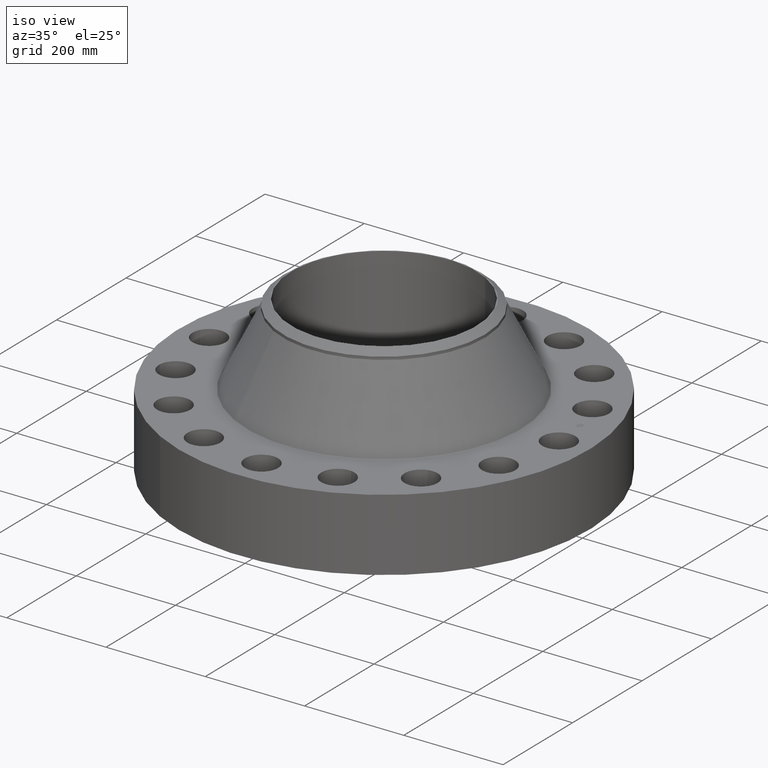
[diagram: clean part render]
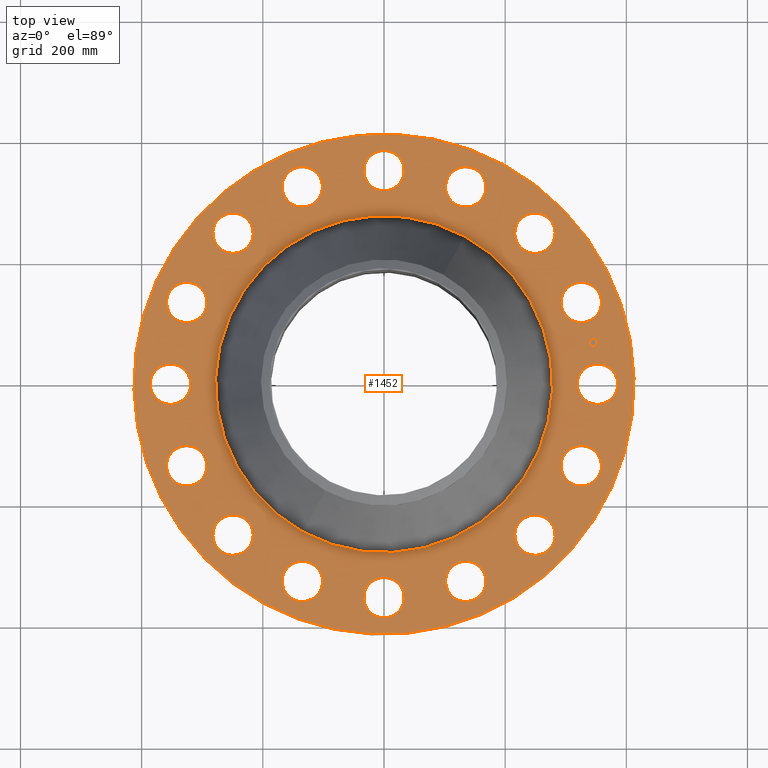
[diagram: tour spotlight — one face highlighted and labeled with its STEP entity id]
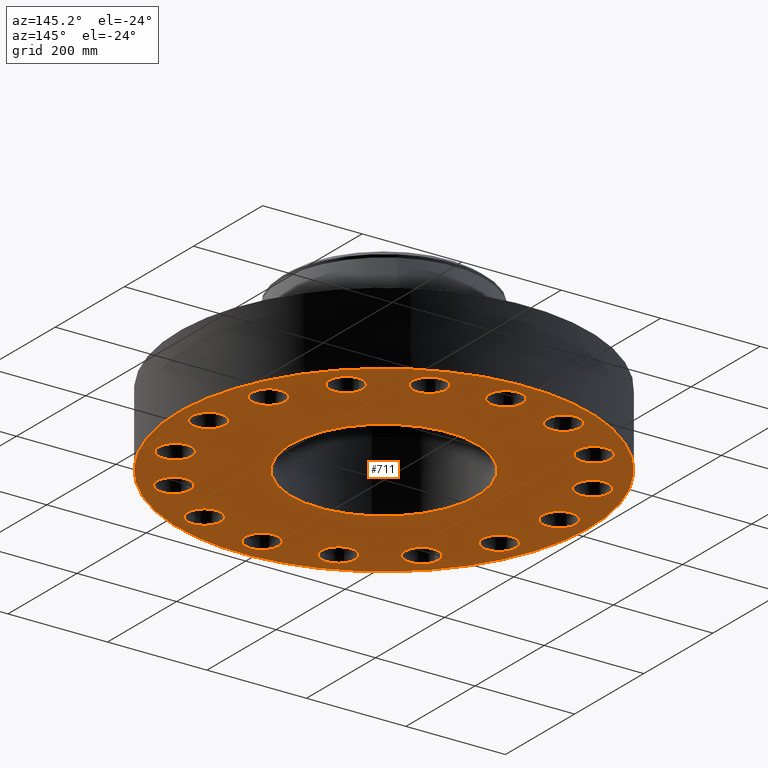
[diagram: tour spotlight — one face highlighted and labeled with its STEP entity id]
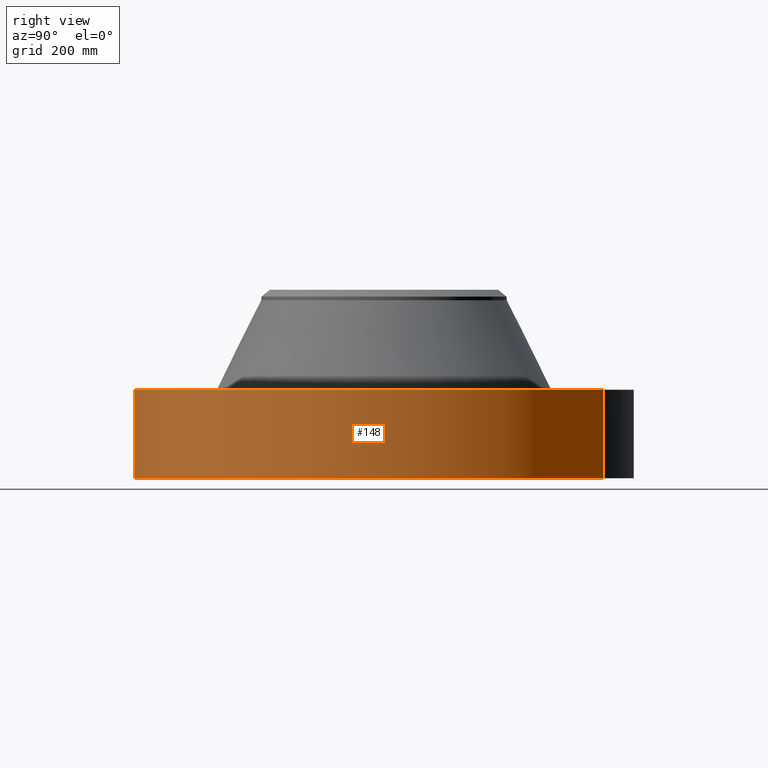
[diagram: tour spotlight — one face highlighted and labeled with its STEP entity id]
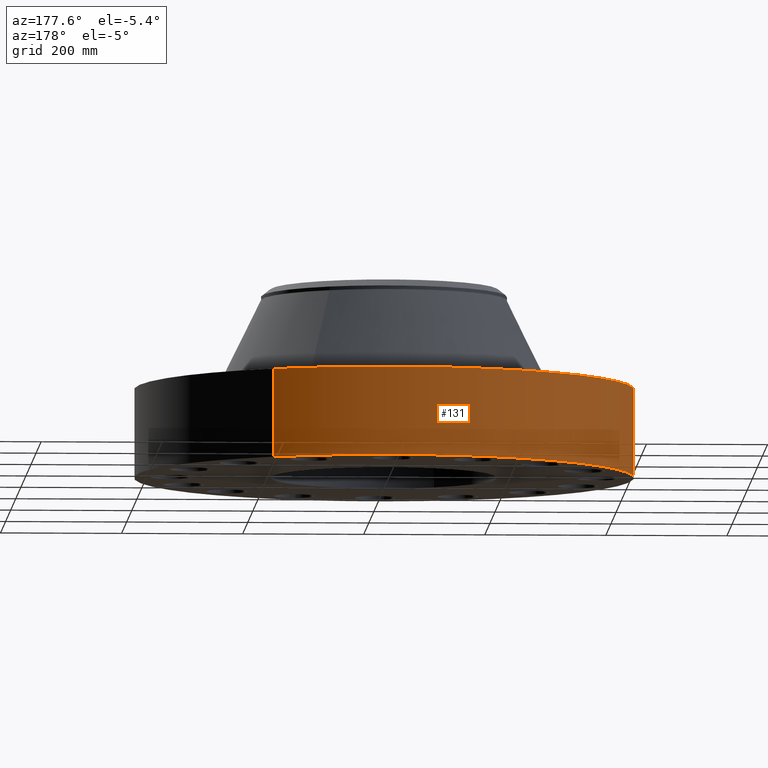
[diagram: tour spotlight — one face highlighted and labeled with its STEP entity id]
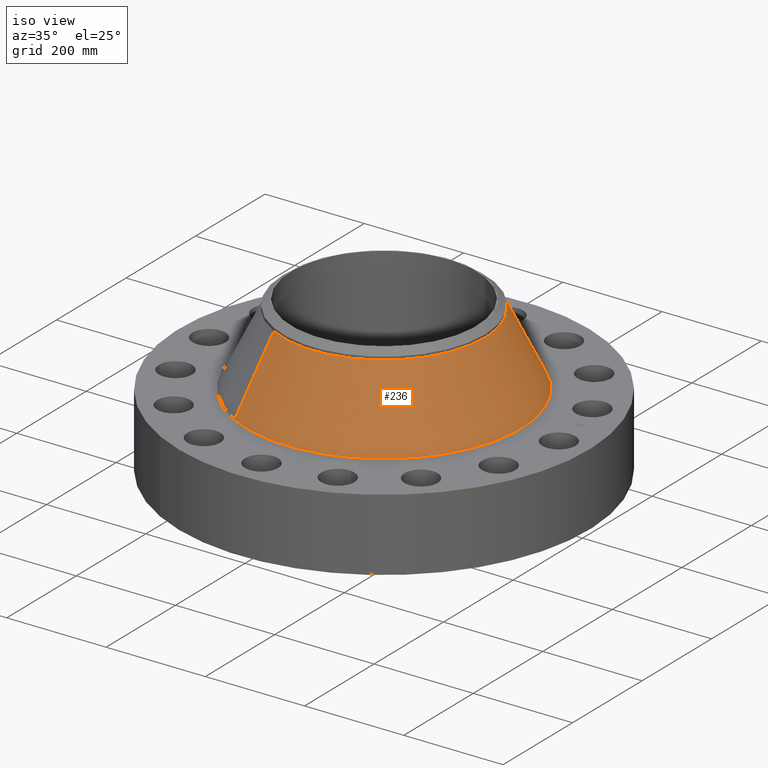
[diagram: tour spotlight — one face highlighted and labeled with its STEP entity id]
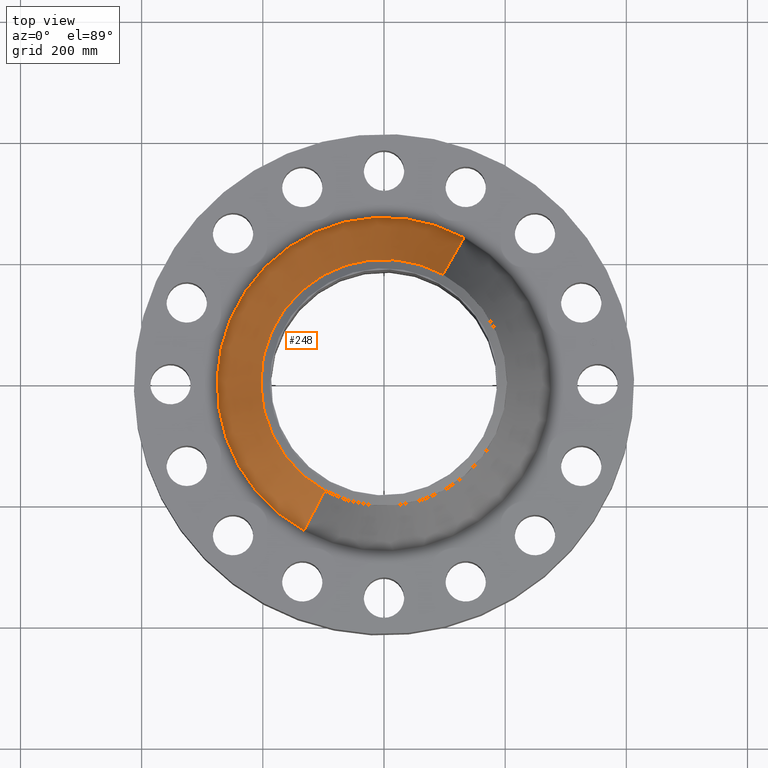
[diagram: tour spotlight — one face highlighted and labeled with its STEP entity id]
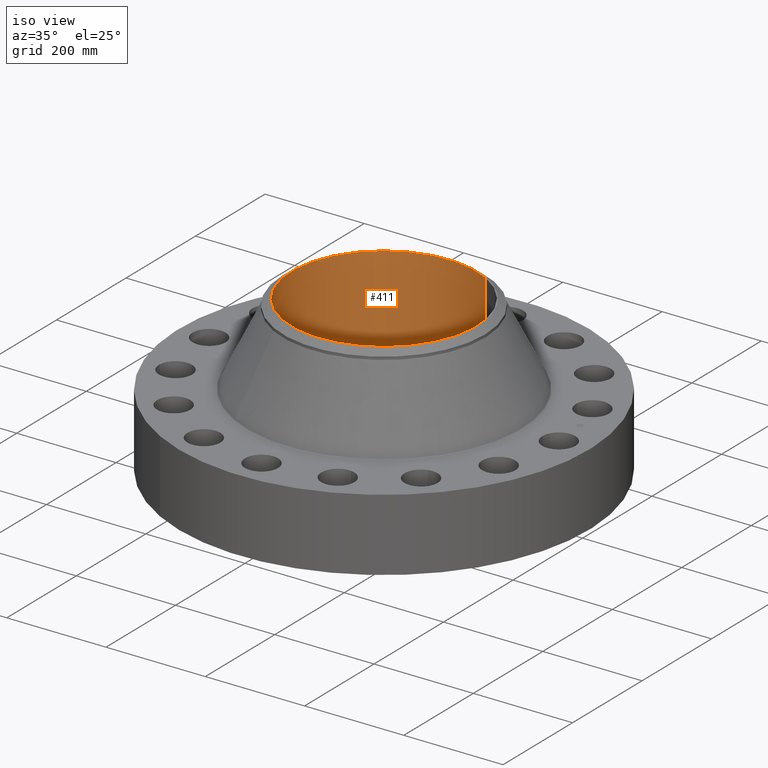
[diagram: tour spotlight — one face highlighted and labeled with its STEP entity id]
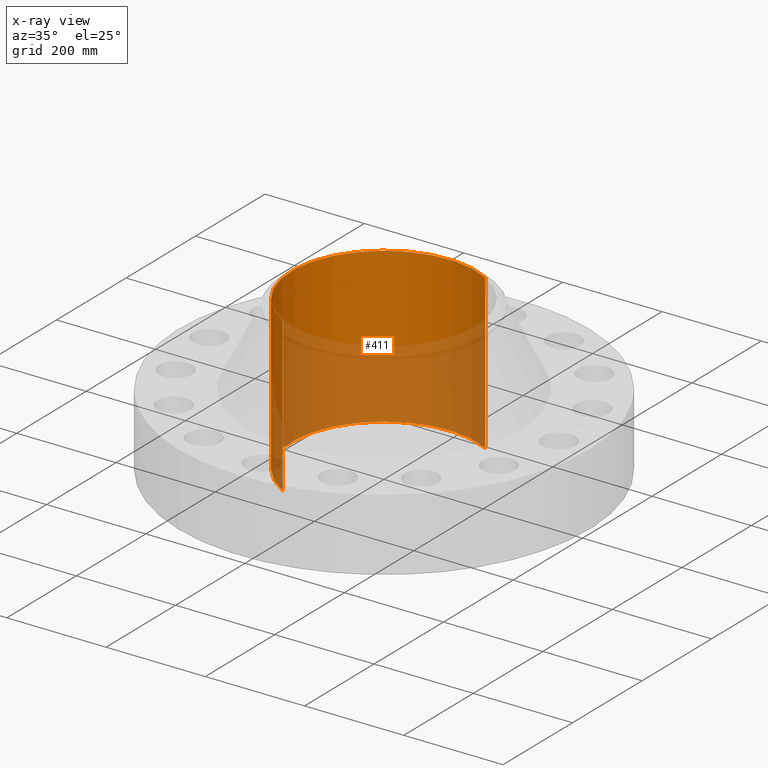
[diagram: x-ray of the same camera — body ghosted, this tour face saturated]
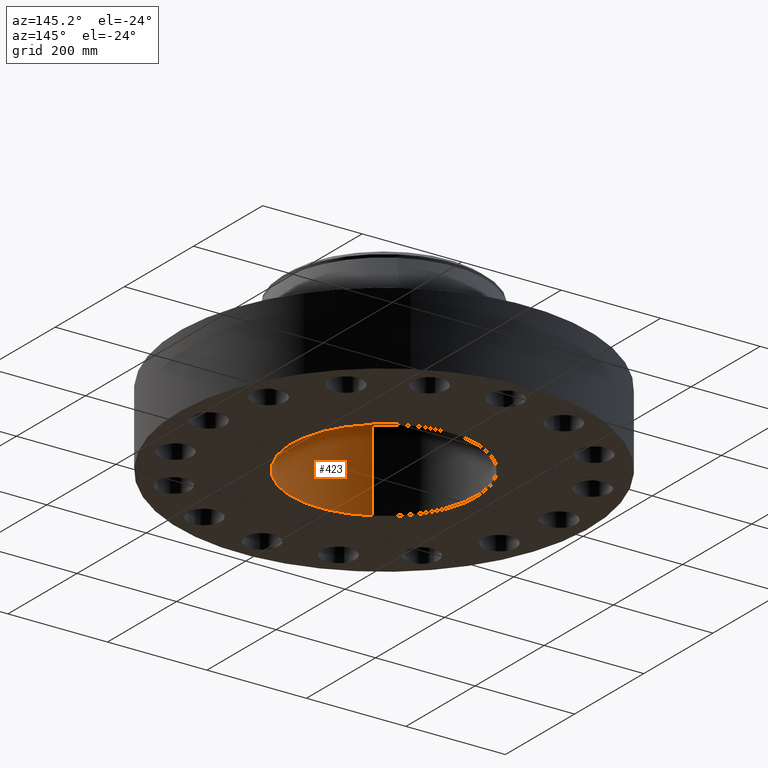
[diagram: tour spotlight — one face highlighted and labeled with its STEP entity id]
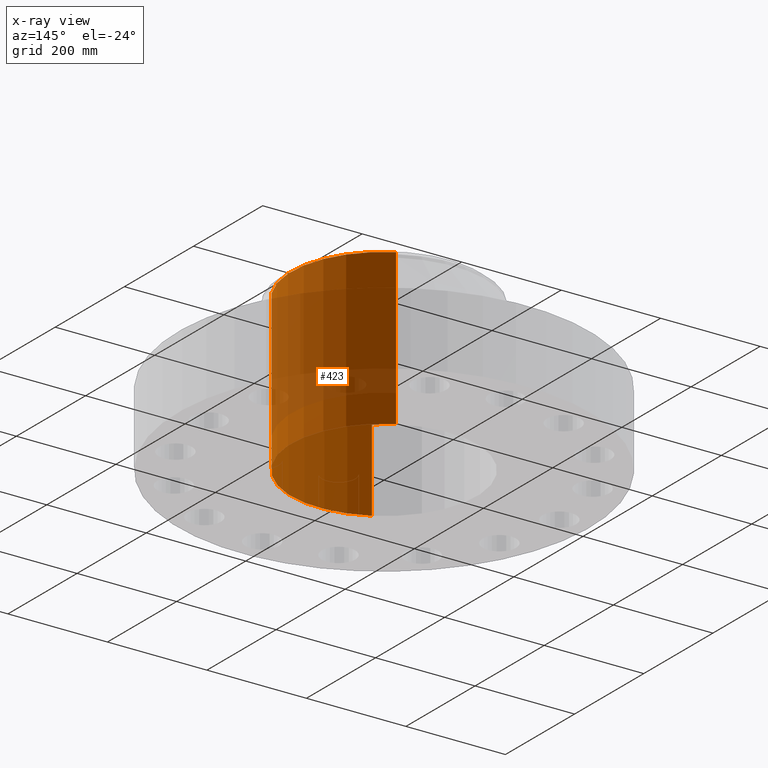
[diagram: x-ray of the same camera — body ghosted, this tour face saturated]
A machine part: a face-by-face anatomy tour. The part has 432 B-rep faces; the first image is the clean iso view, then the 8 largest visible faces are spotlighted one at a time (largest first), each with its STEP entity span.

Face 1 — top view, entity #1452. In plain terms, the highlighted planar face has unit normal (0, 0, -1).
Definition (entity closure, byte-faithful):
#65=AXIS2_PLACEMENT_3D('Circle Axis2P3D',#63,#64,$) ;
#82=AXIS2_PLACEMENT_3D('Circle Axis2P3D',#80,#81,$) ;
#115=AXIS2_PLACEMENT_3D('Circle Axis2P3D',#113,#114,$) ;
#139=AXIS2_PLACEMENT_3D('Circle Axis2P3D',#137,#138,$) ;
#156=AXIS2_PLACEMENT_3D('Circle Axis2P3D',#154,#155,$) ;
#191=AXIS2_PLACEMENT_3D('Circle Axis2P3D',#189,#190,$) ;
#733=AXIS2_PLACEMENT_3D('Circle Axis2P3D',#731,#732,$) ;
#745=AXIS2_PLACEMENT_3D('Circle Axis2P3D',#743,#744,$) ;
#776=AXIS2_PLACEMENT_3D('Circle Axis2P3D',#774,#775,$) ;
#788=AXIS2_PLACEMENT_3D('Circle Axis2P3D',#786,#787,$) ;
#819=AXIS2_PLACEMENT_3D('Circle Axis2P3D',#817,#818,$) ;
#831=AXIS2_PLACEMENT_3D('Circle Axis2P3D',#829,#830,$) ;
#862=AXIS2_PLACEMENT_3D('Circle Axis2P3D',#860,#861,$) ;
#874=AXIS2_PLACEMENT_3D('Circle Axis2P3D',#872,#873,$) ;
#905=AXIS2_PLACEMENT_3D('Circle Axis2P3D',#903,#904,$) ;
#917=AXIS2_PLACEMENT_3D('Circle Axis2P3D',#915,#916,$) ;
#948=AXIS2_PLACEMENT_3D('Circle Axis2P3D',#946,#947,$) ;
#960=AXIS2_PLACEMENT_3D('Circle Axis2P3D',#958,#959,$) ;
#991=AXIS2_PLACEMENT_3D('Circle Axis2P3D',#989,#990,$) ;
#1003=AXIS2_PLACEMENT_3D('Circle Axis2P3D',#1001,#1002,$) ;
#1034=AXIS2_PLACEMENT_3D('Circle Axis2P3D',#1032,#1033,$) ;
#1046=AXIS2_PLACEMENT_3D('Circle Axis2P3D',#1044,#1045,$) ;
#1077=AXIS2_PLACEMENT_3D('Circle Axis2P3D',#1075,#1076,$) ;
#1089=AXIS2_PLACEMENT_3D('Circle Axis2P3D',#1087,#1088,$) ;
#1120=AXIS2_PLACEMENT_3D('Circle Axis2P3D',#1118,#1119,$) ;
#1132=AXIS2_PLACEMENT_3D('Circle Axis2P3D',#1130,#1131,$) ;
#1163=AXIS2_PLACEMENT_3D('Circle Axis2P3D',#1161,#1162,$) ;
#1175=AXIS2_PLACEMENT_3D('Circle Axis2P3D',#1173,#1174,$) ;
#1206=AXIS2_PLACEMENT_3D('Circle Axis2P3D',#1204,#1205,$) ;
#1218=AXIS2_PLACEMENT_3D('Circle Axis2P3D',#1216,#1217,$) ;
#1249=AXIS2_PLACEMENT_3D('Circle Axis2P3D',#1247,#1248,$) ;
#1261=AXIS2_PLACEMENT_3D('Circle Axis2P3D',#1259,#1260,$) ;
#1292=AXIS2_PLACEMENT_3D('Circle Axis2P3D',#1290,#1291,$) ;
#1304=AXIS2_PLACEMENT_3D('Circle Axis2P3D',#1302,#1303,$) ;
#1335=AXIS2_PLACEMENT_3D('Circle Axis2P3D',#1333,#1334,$) ;
#1347=AXIS2_PLACEMENT_3D('Circle Axis2P3D',#1345,#1346,$) ;
#1360=AXIS2_PLACEMENT_3D('Plane Axis2P3D',#1357,#1358,#1359) ;
#1436=AXIS2_PLACEMENT_3D('Circle Axis2P3D',#1434,#1435,$) ;
#1445=AXIS2_PLACEMENT_3D('Circle Axis2P3D',#1443,#1444,$) ;
#46=CARTESIAN_POINT('Vertex',(12.7209789312,0.630444583267,5.75000000002)) ;
#60=CARTESIAN_POINT('Vertex',(15.0290210689,-0.630444583267,5.75000000002)) ;
#63=CARTESIAN_POINT('Axis2P3D Location',(13.8750000001,0.,5.75000000002)) ;
#80=CARTESIAN_POINT('Axis2P3D Location',(13.8750000001,0.,5.75000000002)) ;
#110=CARTESIAN_POINT('Vertex',(-7.79066500235,-14.2607166308,5.75000000002)) ;
#113=CARTESIAN_POINT('Axis2P3D Location',(0.,0.,5.75000000002)) ;
#117=CARTESIAN_POINT('Vertex',(7.79066500235,14.2607166308,5.75000000002)) ;
#137=CARTESIAN_POINT('Axis2P3D Location',(0.,0.,5.75000000002)) ;
#154=CARTESIAN_POINT('Axis2P3D Location',(0.,0.,5.75000000002)) ;
#158=CARTESIAN_POINT('Vertex',(5.24950314778,9.60915105711,5.75000000002)) ;
#160=CARTESIAN_POINT('Vertex',(-5.24950314778,-9.60915105711,5.75000000002)) ;
#189=CARTESIAN_POINT('Axis2P3D Location',(0.,0.,5.75000000002)) ;
#721=CARTESIAN_POINT('Vertex',(-11.9939127651,4.28565303356,5.75000000002)) ;
#728=CARTESIAN_POINT('Vertex',(-13.6437442622,6.33381221461,5.75000000002)) ;
#731=CARTESIAN_POINT('Axis2P3D Location',(-12.8188285136,5.30973262409,5.75000000002)) ;
#743=CARTESIAN_POINT('Axis2P3D Location',(-12.8188285136,5.30973262409,5.75000000002)) ;
#764=CARTESIAN_POINT('Vertex',(9.44088210555,-8.54929882557,5.75000000002)) ;
#771=CARTESIAN_POINT('Vertex',(10.1813310725,-11.0729143524,5.75000000002)) ;
#774=CARTESIAN_POINT('Axis2P3D Location',(9.811106589,-9.811106589,5.75000000002)) ;
#786=CARTESIAN_POINT('Axis2P3D Location',(9.811106589,-9.811106589,5.75000000002)) ;
#807=CARTESIAN_POINT('Vertex',(-9.44088210555,8.54929882557,5.75000000002)) ;
#814=CARTESIAN_POINT('Vertex',(-10.1813310725,11.0729143524,5.75000000002)) ;
#817=CARTESIAN_POINT('Axis2P3D Location',(-9.811106589,9.811106589,5.75000000002)) ;
#829=CARTESIAN_POINT('Axis2P3D Location',(-9.811106589,9.811106589,5.75000000002)) ;
#850=CARTESIAN_POINT('Vertex',(5.45056272729,-11.511391371,5.75000000002)) ;
#857=CARTESIAN_POINT('Vertex',(5.16890252089,-14.1262656563,5.75000000002)) ;
#860=CARTESIAN_POINT('Axis2P3D Location',(5.30973262409,-12.8188285136,5.75000000002)) ;
#872=CARTESIAN_POINT('Axis2P3D Location',(5.30973262409,-12.8188285136,5.75000000002)) ;
#893=CARTESIAN_POINT('Vertex',(-5.45056272729,11.511391371,5.75000000002)) ;
#900=CARTESIAN_POINT('Vertex',(-5.16890252089,14.1262656563,5.75000000002)) ;
#903=CARTESIAN_POINT('Axis2P3D Location',(-5.30973262409,12.8188285136,5.75000000002)) ;
#915=CARTESIAN_POINT('Axis2P3D Location',(-5.30973262409,12.8188285136,5.75000000002)) ;
#936=CARTESIAN_POINT('Vertex',(0.630444583267,-12.7209789312,5.75000000002)) ;
#943=CARTESIAN_POINT('Vertex',(-0.630444583267,-15.0290210689,5.75000000002)) ;
#946=CARTESIAN_POINT('Axis2P3D Location',(-1.3883311595E-015,-13.8750000001,5.75000000002)) ;
#958=CARTESIAN_POINT('Axis2P3D Location',(-1.3883311595E-015,-13.8750000001,5.75000000002)) ;
#979=CARTESIAN_POINT('Vertex',(-0.630444583267,12.7209789312,5.75000000002)) ;
#986=CARTESIAN_POINT('Vertex',(0.630444583267,15.0290210689,5.75000000002)) ;
#989=CARTESIAN_POINT('Axis2P3D Location',(-2.54879615074E-015,13.8750000001,5.75000000002)) ;
#1001=CARTESIAN_POINT('Axis2P3D Location',(-2.54879615074E-015,13.8750000001,5.75000000002)) ;
#1022=CARTESIAN_POINT('Vertex',(-4.28565303356,-11.9939127651,5.75000000002)) ;
#1029=CARTESIAN_POINT('Vertex',(-6.33381221461,-13.6437442622,5.75000000002)) ;
#1032=CARTESIAN_POINT('Axis2P3D Location',(-5.30973262409,-12.8188285136,5.75000000002)) ;
#1044=CARTESIAN_POINT('Axis2P3D Location',(-5.30973262409,-12.8188285136,5.75000000002)) ;
#1065=CARTESIAN_POINT('Vertex',(4.28565303356,11.9939127651,5.75000000002)) ;
#1072=CARTESIAN_POINT('Vertex',(6.33381221461,13.6437442622,5.75000000002)) ;
#1075=CARTESIAN_POINT('Axis2P3D Location',(5.30973262409,12.8188285136,5.75000000002)) ;
#1087=CARTESIAN_POINT('Axis2P3D Location',(5.30973262409,12.8188285136,5.75000000002)) ;
#1108=CARTESIAN_POINT('Vertex',(-8.54929882557,-9.44088210555,5.75000000002)) ;
#1115=CARTESIAN_POINT('Vertex',(-11.0729143524,-10.1813310725,5.75000000002)) ;
#1118=CARTESIAN_POINT('Axis2P3D Location',(-9.811106589,-9.811106589,5.75000000002)) ;
#1130=CARTESIAN_POINT('Axis2P3D Location',(-9.811106589,-9.811106589,5.75000000002)) ;
#1151=CARTESIAN_POINT('Vertex',(8.54929882557,9.44088210555,5.75000000002)) ;
#1158=CARTESIAN_POINT('Vertex',(11.0729143524,10.1813310725,5.75000000002)) ;
#1161=CARTESIAN_POINT('Axis2P3D Location',(9.811106589,9.811106589,5.75000000002)) ;
#1173=CARTESIAN_POINT('Axis2P3D Location',(9.811106589,9.811106589,5.75000000002)) ;
#1194=CARTESIAN_POINT('Vertex',(-11.511391371,-5.45056272729,5.75000000002)) ;
#1201=CARTESIAN_POINT('Vertex',(-14.1262656563,-5.16890252089,5.75000000002)) ;
#1204=CARTESIAN_POINT('Axis2P3D Location',(-12.8188285136,-5.30973262409,5.75000000002)) ;
#1216=CARTESIAN_POINT('Axis2P3D Location',(-12.8188285136,-5.30973262409,5.75000000002)) ;
#1237=CARTESIAN_POINT('Vertex',(11.511391371,5.45056272729,5.75000000002)) ;
#1244=CARTESIAN_POINT('Vertex',(14.1262656563,5.16890252089,5.75000000002)) ;
#1247=CARTESIAN_POINT('Axis2P3D Location',(12.8188285136,5.30973262409,5.75000000002)) ;
#1259=CARTESIAN_POINT('Axis2P3D Location',(12.8188285136,5.30973262409,5.75000000002)) ;
#1280=CARTESIAN_POINT('Vertex',(-12.7209789312,-0.630444583267,5.75000000002)) ;
#1287=CARTESIAN_POINT('Vertex',(-15.0290210689,0.630444583267,5.75000000002)) ;
#1290=CARTESIAN_POINT('Axis2P3D Location',(-13.8750000001,-1.69919743382E-015,5.75000000002)) ;
#1302=CARTESIAN_POINT('Axis2P3D Location',(-13.8750000001,-1.69919743382E-015,5.75000000002)) ;
#1323=CARTESIAN_POINT('Vertex',(11.9939127651,-4.28565303356,5.75000000002)) ;
#1330=CARTESIAN_POINT('Vertex',(13.6437442622,-6.33381221461,5.75000000002)) ;
#1333=CARTESIAN_POINT('Axis2P3D Location',(12.8188285136,-5.30973262409,5.75000000002)) ;
#1345=CARTESIAN_POINT('Axis2P3D Location',(12.8188285136,-5.30973262409,5.75000000002)) ;
#1357=CARTESIAN_POINT('Axis2P3D Location',(0.,16.2500000001,5.75000000002)) ;
#1434=CARTESIAN_POINT('Axis2P3D Location',(13.6083957656,2.70687821798,5.75000000002)) ;
#1438=CARTESIAN_POINT('Vertex',(13.560110911,2.94962257489,5.75000000002)) ;
#1440=CARTESIAN_POINT('Vertex',(13.6566806203,2.46413386108,5.75000000002)) ;
#1443=CARTESIAN_POINT('Axis2P3D Location',(13.6083957656,2.70687821798,5.75000000002)) ;
#64=DIRECTION('Axis2P3D Direction',(0.,-0.,-0.0393700787402)) ;
#81=DIRECTION('Axis2P3D Direction',(0.,-0.,-0.0393700787402)) ;
#114=DIRECTION('Axis2P3D Direction',(0.,0.,-0.0393700787402)) ;
#138=DIRECTION('Axis2P3D Direction',(0.,0.,-0.0393700787402)) ;
#155=DIRECTION('Axis2P3D Direction',(0.,0.,-0.0393700787402)) ;
#190=DIRECTION('Axis2P3D Direction',(0.,0.,-0.0393700787402)) ;
#732=DIRECTION('Axis2P3D Direction',(0.,0.,-0.0393700787402)) ;
#744=DIRECTION('Axis2P3D Direction',(0.,0.,-0.0393700787402)) ;
#775=DIRECTION('Axis2P3D Direction',(0.,-0.,-0.0393700787402)) ;
#787=DIRECTION('Axis2P3D Direction',(0.,-0.,-0.0393700787402)) ;
#818=DIRECTION('Axis2P3D Direction',(0.,0.,-0.0393700787402)) ;
#830=DIRECTION('Axis2P3D Direction',(0.,0.,-0.0393700787402)) ;
#861=DIRECTION('Axis2P3D Direction',(0.,-0.,-0.0393700787402)) ;
#873=DIRECTION('Axis2P3D Direction',(0.,-0.,-0.0393700787402)) ;
#904=DIRECTION('Axis2P3D Direction',(0.,0.,-0.0393700787402)) ;
#916=DIRECTION('Axis2P3D Direction',(0.,0.,-0.0393700787402)) ;
#947=DIRECTION('Axis2P3D Direction',(0.,-0.,-0.0393700787402)) ;
#959=DIRECTION('Axis2P3D Direction',(0.,-0.,-0.0393700787402)) ;
#990=DIRECTION('Axis2P3D Direction',(0.,0.,-0.0393700787402)) ;
#1002=DIRECTION('Axis2P3D Direction',(0.,0.,-0.0393700787402)) ;
#1033=DIRECTION('Axis2P3D Direction',(-0.,0.,-0.0393700787402)) ;
#1045=DIRECTION('Axis2P3D Direction',(-0.,0.,-0.0393700787402)) ;
#1076=DIRECTION('Axis2P3D Direction',(0.,0.,-0.0393700787402)) ;
#1088=DIRECTION('Axis2P3D Direction',(0.,0.,-0.0393700787402)) ;
#1119=DIRECTION('Axis2P3D Direction',(-0.,0.,-0.0393700787402)) ;
#1131=DIRECTION('Axis2P3D Direction',(-0.,0.,-0.0393700787402)) ;
#1162=DIRECTION('Axis2P3D Direction',(0.,0.,-0.0393700787402)) ;
#1174=DIRECTION('Axis2P3D Direction',(0.,0.,-0.0393700787402)) ;
#1205=DIRECTION('Axis2P3D Direction',(-0.,0.,-0.0393700787402)) ;
#1217=DIRECTION('Axis2P3D Direction',(-0.,0.,-0.0393700787402)) ;
#1248=DIRECTION('Axis2P3D Direction',(0.,0.,-0.0393700787402)) ;
#1260=DIRECTION('Axis2P3D Direction',(0.,0.,-0.0393700787402)) ;
#1291=DIRECTION('Axis2P3D Direction',(-0.,0.,-0.0393700787402)) ;
#1303=DIRECTION('Axis2P3D Direction',(-0.,0.,-0.0393700787402)) ;
#1334=DIRECTION('Axis2P3D Direction',(0.,-0.,-0.0393700787402)) ;
#1346=DIRECTION('Axis2P3D Direction',(0.,-0.,-0.0393700787402)) ;
#1358=DIRECTION('Axis2P3D Direction',(0.,0.,-0.0393700787402)) ;
#1359=DIRECTION('Axis2P3D XDirection',(0.0393700787402,0.,0.)) ;
#1435=DIRECTION('Axis2P3D Direction',(0.,0.,-0.0393700787402)) ;
#1444=DIRECTION('Axis2P3D Direction',(0.,0.,-0.0393700787402)) ;
#1363=ORIENTED_EDGE('',*,*,#141,.F.) ;
#1364=ORIENTED_EDGE('',*,*,#119,.F.) ;
#1367=ORIENTED_EDGE('',*,*,#67,.T.) ;
#1368=ORIENTED_EDGE('',*,*,#84,.T.) ;
#1371=ORIENTED_EDGE('',*,*,#193,.T.) ;
#1372=ORIENTED_EDGE('',*,*,#162,.T.) ;
#1375=ORIENTED_EDGE('',*,*,#1349,.T.) ;
#1376=ORIENTED_EDGE('',*,*,#1337,.T.) ;
#1379=ORIENTED_EDGE('',*,*,#790,.T.) ;
#1380=ORIENTED_EDGE('',*,*,#778,.T.) ;
#1383=ORIENTED_EDGE('',*,*,#876,.T.) ;
#1384=ORIENTED_EDGE('',*,*,#864,.T.) ;
#1387=ORIENTED_EDGE('',*,*,#962,.T.) ;
#1388=ORIENTED_EDGE('',*,*,#950,.T.) ;
#1391=ORIENTED_EDGE('',*,*,#1048,.T.) ;
#1392=ORIENTED_EDGE('',*,*,#1036,.T.) ;
#1395=ORIENTED_EDGE('',*,*,#1134,.T.) ;
#1396=ORIENTED_EDGE('',*,*,#1122,.T.) ;
#1399=ORIENTED_EDGE('',*,*,#1220,.T.) ;
#1400=ORIENTED_EDGE('',*,*,#1208,.T.) ;
#1403=ORIENTED_EDGE('',*,*,#1306,.T.) ;
#1404=ORIENTED_EDGE('',*,*,#1294,.T.) ;
#1407=ORIENTED_EDGE('',*,*,#747,.T.) ;
#1408=ORIENTED_EDGE('',*,*,#735,.T.) ;
#1411=ORIENTED_EDGE('',*,*,#833,.T.) ;
#1412=ORIENTED_EDGE('',*,*,#821,.T.) ;
#1415=ORIENTED_EDGE('',*,*,#919,.T.) ;
#1416=ORIENTED_EDGE('',*,*,#907,.T.) ;
#1419=ORIENTED_EDGE('',*,*,#1005,.T.) ;
#1420=ORIENTED_EDGE('',*,*,#993,.T.) ;
#1423=ORIENTED_EDGE('',*,*,#1091,.T.) ;
#1424=ORIENTED_EDGE('',*,*,#1079,.T.) ;
#1427=ORIENTED_EDGE('',*,*,#1177,.T.) ;
#1428=ORIENTED_EDGE('',*,*,#1165,.T.) ;
#1431=ORIENTED_EDGE('',*,*,#1263,.T.) ;
#1432=ORIENTED_EDGE('',*,*,#1251,.T.) ;
#1449=ORIENTED_EDGE('',*,*,#1442,.T.) ;
#1450=ORIENTED_EDGE('',*,*,#1447,.T.) ;
#1369=FACE_BOUND('',#1366,.T.) ;
#1373=FACE_BOUND('',#1370,.T.) ;
#1377=FACE_BOUND('',#1374,.T.) ;
#1381=FACE_BOUND('',#1378,.T.) ;
#1385=FACE_BOUND('',#1382,.T.) ;
#1389=FACE_BOUND('',#1386,.T.) ;
#1393=FACE_BOUND('',#1390,.T.) ;
#1397=FACE_BOUND('',#1394,.T.) ;
#1401=FACE_BOUND('',#1398,.T.) ;
#1405=FACE_BOUND('',#1402,.T.) ;
#1409=FACE_BOUND('',#1406,.T.) ;
#1413=FACE_BOUND('',#1410,.T.) ;
#1417=FACE_BOUND('',#1414,.T.) ;
#1421=FACE_BOUND('',#1418,.T.) ;
#1425=FACE_BOUND('',#1422,.T.) ;
#1429=FACE_BOUND('',#1426,.T.) ;
#1433=FACE_BOUND('',#1430,.T.) ;
#1451=FACE_BOUND('',#1448,.T.) ;
#1452=ADVANCED_FACE('PartBody',(#1365,#1369,#1373,#1377,#1381,#1385,#1389,#1393,#1397,#1401,#1405,#1409,#1413,#1417,#1421,#1425,#1429,#1433,#1451),#1361,.F.) ;
#66=CIRCLE('generated circle',#65,1.31500000001) ;
#83=CIRCLE('generated circle',#82,1.31500000001) ;
#116=CIRCLE('generated circle',#115,16.2500000001) ;
#140=CIRCLE('generated circle',#139,16.2500000001) ;
#157=CIRCLE('generated circle',#156,10.9495692763) ;
#192=CIRCLE('generated circle',#191,10.9495692763) ;
#734=CIRCLE('generated circle',#733,1.31500000001) ;
#746=CIRCLE('generated circle',#745,1.31500000001) ;
#777=CIRCLE('generated circle',#776,1.31500000001) ;
#789=CIRCLE('generated circle',#788,1.31500000001) ;
#820=CIRCLE('generated circle',#819,1.31500000001) ;
#832=CIRCLE('generated circle',#831,1.31500000001) ;
#863=CIRCLE('generated circle',#862,1.31500000001) ;
#875=CIRCLE('generated circle',#874,1.31500000001) ;
#906=CIRCLE('generated circle',#905,1.31500000001) ;
#918=CIRCLE('generated circle',#917,1.31500000001) ;
#949=CIRCLE('generated circle',#948,1.31500000001) ;
#961=CIRCLE('generated circle',#960,1.31500000001) ;
#992=CIRCLE('generated circle',#991,1.31500000001) ;
#1004=CIRCLE('generated circle',#1003,1.31500000001) ;
#1035=CIRCLE('generated circle',#1034,1.31500000001) ;
#1047=CIRCLE('generated circle',#1046,1.31500000001) ;
#1078=CIRCLE('generated circle',#1077,1.31500000001) ;
#1090=CIRCLE('generated circle',#1089,1.31500000001) ;
#1121=CIRCLE('generated circle',#1120,1.31500000001) ;
#1133=CIRCLE('generated circle',#1132,1.31500000001) ;
#1164=CIRCLE('generated circle',#1163,1.31500000001) ;
#1176=CIRCLE('generated circle',#1175,1.31500000001) ;
#1207=CIRCLE('generated circle',#1206,1.31500000001) ;
#1219=CIRCLE('generated circle',#1218,1.31500000001) ;
#1250=CIRCLE('generated circle',#1249,1.31500000001) ;
#1262=CIRCLE('generated circle',#1261,1.31500000001) ;
#1293=CIRCLE('generated circle',#1292,1.31500000001) ;
#1305=CIRCLE('generated circle',#1304,1.31500000001) ;
#1336=CIRCLE('generated circle',#1335,1.31500000001) ;
#1348=CIRCLE('generated circle',#1347,1.31500000001) ;
#1437=CIRCLE('generated circle',#1436,0.247500000001) ;
#1446=CIRCLE('generated circle',#1445,0.247500000001) ;
#67=EDGE_CURVE('',#47,#61,#66,.T.) ;
#84=EDGE_CURVE('',#61,#47,#83,.T.) ;
#119=EDGE_CURVE('',#111,#118,#116,.T.) ;
#141=EDGE_CURVE('',#118,#111,#140,.T.) ;
#162=EDGE_CURVE('',#159,#161,#157,.T.) ;
#193=EDGE_CURVE('',#161,#159,#192,.T.) ;
#735=EDGE_CURVE('',#722,#729,#734,.T.) ;
#747=EDGE_CURVE('',#729,#722,#746,.T.) ;
#778=EDGE_CURVE('',#765,#772,#777,.T.) ;
#790=EDGE_CURVE('',#772,#765,#789,.T.) ;
#821=EDGE_CURVE('',#808,#815,#820,.T.) ;
#833=EDGE_CURVE('',#815,#808,#832,.T.) ;
#864=EDGE_CURVE('',#851,#858,#863,.T.) ;
#876=EDGE_CURVE('',#858,#851,#875,.T.) ;
#907=EDGE_CURVE('',#894,#901,#906,.T.) ;
#919=EDGE_CURVE('',#901,#894,#918,.T.) ;
#950=EDGE_CURVE('',#937,#944,#949,.T.) ;
#962=EDGE_CURVE('',#944,#937,#961,.T.) ;
#993=EDGE_CURVE('',#980,#987,#992,.T.) ;
#1005=EDGE_CURVE('',#987,#980,#1004,.T.) ;
#1036=EDGE_CURVE('',#1023,#1030,#1035,.T.) ;
#1048=EDGE_CURVE('',#1030,#1023,#1047,.T.) ;
#1079=EDGE_CURVE('',#1066,#1073,#1078,.T.) ;
#1091=EDGE_CURVE('',#1073,#1066,#1090,.T.) ;
#1122=EDGE_CURVE('',#1109,#1116,#1121,.T.) ;
#1134=EDGE_CURVE('',#1116,#1109,#1133,.T.) ;
#1165=EDGE_CURVE('',#1152,#1159,#1164,.T.) ;
#1177=EDGE_CURVE('',#1159,#1152,#1176,.T.) ;
#1208=EDGE_CURVE('',#1195,#1202,#1207,.T.) ;
#1220=EDGE_CURVE('',#1202,#1195,#1219,.T.) ;
#1251=EDGE_CURVE('',#1238,#1245,#1250,.T.) ;
#1263=EDGE_CURVE('',#1245,#1238,#1262,.T.) ;
#1294=EDGE_CURVE('',#1281,#1288,#1293,.T.) ;
#1306=EDGE_CURVE('',#1288,#1281,#1305,.T.) ;
#1337=EDGE_CURVE('',#1324,#1331,#1336,.T.) ;
#1349=EDGE_CURVE('',#1331,#1324,#1348,.T.) ;
#1442=EDGE_CURVE('',#1439,#1441,#1437,.T.) ;
#1447=EDGE_CURVE('',#1441,#1439,#1446,.T.) ;
#1362=EDGE_LOOP('',(#1363,#1364)) ;
#1366=EDGE_LOOP('',(#1367,#1368)) ;
#1370=EDGE_LOOP('',(#1371,#1372)) ;
#1374=EDGE_LOOP('',(#1375,#1376)) ;
#1378=EDGE_LOOP('',(#1379,#1380)) ;
#1382=EDGE_LOOP('',(#1383,#1384)) ;
#1386=EDGE_LOOP('',(#1387,#1388)) ;
#1390=EDGE_LOOP('',(#1391,#1392)) ;
#1394=EDGE_LOOP('',(#1395,#1396)) ;
#1398=EDGE_LOOP('',(#1399,#1400)) ;
#1402=EDGE_LOOP('',(#1403,#1404)) ;
#1406=EDGE_LOOP('',(#1407,#1408)) ;
#1410=EDGE_LOOP('',(#1411,#1412)) ;
#1414=EDGE_LOOP('',(#1415,#1416)) ;
#1418=EDGE_LOOP('',(#1419,#1420)) ;
#1422=EDGE_LOOP('',(#1423,#1424)) ;
#1426=EDGE_LOOP('',(#1427,#1428)) ;
#1430=EDGE_LOOP('',(#1431,#1432)) ;
#1448=EDGE_LOOP('',(#1449,#1450)) ;
#1365=FACE_OUTER_BOUND('',#1362,.T.) ;
#1361=PLANE('',#1360) ;
#47=VERTEX_POINT('',#46) ;
#61=VERTEX_POINT('',#60) ;
#111=VERTEX_POINT('',#110) ;
#118=VERTEX_POINT('',#117) ;
#159=VERTEX_POINT('',#158) ;
#161=VERTEX_POINT('',#160) ;
#722=VERTEX_POINT('',#721) ;
#729=VERTEX_POINT('',#728) ;
#765=VERTEX_POINT('',#764) ;
#772=VERTEX_POINT('',#771) ;
#808=VERTEX_POINT('',#807) ;
#815=VERTEX_POINT('',#814) ;
#851=VERTEX_POINT('',#850) ;
#858=VERTEX_POINT('',#857) ;
#894=VERTEX_POINT('',#893) ;
#901=VERTEX_POINT('',#900) ;
#937=VERTEX_POINT('',#936) ;
#944=VERTEX_POINT('',#943) ;
#980=VERTEX_POINT('',#979) ;
#987=VERTEX_POINT('',#986) ;
#1023=VERTEX_POINT('',#1022) ;
#1030=VERTEX_POINT('',#1029) ;
#1066=VERTEX_POINT('',#1065) ;
#1073=VERTEX_POINT('',#1072) ;
#1109=VERTEX_POINT('',#1108) ;
#1116=VERTEX_POINT('',#1115) ;
#1152=VERTEX_POINT('',#1151) ;
#1159=VERTEX_POINT('',#1158) ;
#1195=VERTEX_POINT('',#1194) ;
#1202=VERTEX_POINT('',#1201) ;
#1238=VERTEX_POINT('',#1237) ;
#1245=VERTEX_POINT('',#1244) ;
#1281=VERTEX_POINT('',#1280) ;
#1288=VERTEX_POINT('',#1287) ;
#1324=VERTEX_POINT('',#1323) ;
#1331=VERTEX_POINT('',#1330) ;
#1439=VERTEX_POINT('',#1438) ;
#1441=VERTEX_POINT('',#1440) ;

Face 2 — auxiliary view, entity #711. In plain terms, the highlighted planar face has unit normal (0, 0, -1).
Definition (entity closure, byte-faithful):
#51=AXIS2_PLACEMENT_3D('Circle Axis2P3D',#49,#50,$) ;
#77=AXIS2_PLACEMENT_3D('Circle Axis2P3D',#75,#76,$) ;
#99=AXIS2_PLACEMENT_3D('Circle Axis2P3D',#97,#98,$) ;
#134=AXIS2_PLACEMENT_3D('Circle Axis2P3D',#132,#133,$) ;
#395=AXIS2_PLACEMENT_3D('Circle Axis2P3D',#393,#394,$) ;
#414=AXIS2_PLACEMENT_3D('Circle Axis2P3D',#412,#413,$) ;
#427=AXIS2_PLACEMENT_3D('Plane Axis2P3D',#424,#425,#426) ;
#443=AXIS2_PLACEMENT_3D('Circle Axis2P3D',#441,#442,$) ;
#452=AXIS2_PLACEMENT_3D('Circle Axis2P3D',#450,#451,$) ;
#461=AXIS2_PLACEMENT_3D('Circle Axis2P3D',#459,#460,$) ;
#470=AXIS2_PLACEMENT_3D('Circle Axis2P3D',#468,#469,$) ;
#479=AXIS2_PLACEMENT_3D('Circle Axis2P3D',#477,#478,$) ;
#488=AXIS2_PLACEMENT_3D('Circle Axis2P3D',#486,#487,$) ;
#497=AXIS2_PLACEMENT_3D('Circle Axis2P3D',#495,#496,$) ;
#506=AXIS2_PLACEMENT_3D('Circle Axis2P3D',#504,#505,$) ;
#515=AXIS2_PLACEMENT_3D('Circle Axis2P3D',#513,#514,$) ;
#524=AXIS2_PLACEMENT_3D('Circle Axis2P3D',#522,#523,$) ;
#533=AXIS2_PLACEMENT_3D('Circle Axis2P3D',#531,#532,$) ;
#542=AXIS2_PLACEMENT_3D('Circle Axis2P3D',#540,#541,$) ;
#551=AXIS2_PLACEMENT_3D('Circle Axis2P3D',#549,#550,$) ;
#560=AXIS2_PLACEMENT_3D('Circle Axis2P3D',#558,#559,$) ;
#569=AXIS2_PLACEMENT_3D('Circle Axis2P3D',#567,#568,$) ;
#578=AXIS2_PLACEMENT_3D('Circle Axis2P3D',#576,#577,$) ;
#587=AXIS2_PLACEMENT_3D('Circle Axis2P3D',#585,#586,$) ;
#596=AXIS2_PLACEMENT_3D('Circle Axis2P3D',#594,#595,$) ;
#605=AXIS2_PLACEMENT_3D('Circle Axis2P3D',#603,#604,$) ;
#614=AXIS2_PLACEMENT_3D('Circle Axis2P3D',#612,#613,$) ;
#623=AXIS2_PLACEMENT_3D('Circle Axis2P3D',#621,#622,$) ;
#632=AXIS2_PLACEMENT_3D('Circle Axis2P3D',#630,#631,$) ;
#641=AXIS2_PLACEMENT_3D('Circle Axis2P3D',#639,#640,$) ;
#650=AXIS2_PLACEMENT_3D('Circle Axis2P3D',#648,#649,$) ;
#659=AXIS2_PLACEMENT_3D('Circle Axis2P3D',#657,#658,$) ;
#668=AXIS2_PLACEMENT_3D('Circle Axis2P3D',#666,#667,$) ;
#677=AXIS2_PLACEMENT_3D('Circle Axis2P3D',#675,#676,$) ;
#686=AXIS2_PLACEMENT_3D('Circle Axis2P3D',#684,#685,$) ;
#695=AXIS2_PLACEMENT_3D('Circle Axis2P3D',#693,#694,$) ;
#704=AXIS2_PLACEMENT_3D('Circle Axis2P3D',#702,#703,$) ;
#44=CARTESIAN_POINT('Vertex',(12.7209789312,0.630444583267,0.)) ;
#49=CARTESIAN_POINT('Axis2P3D Location',(13.8750000001,0.,0.)) ;
#53=CARTESIAN_POINT('Vertex',(15.0290210689,-0.630444583267,0.)) ;
#75=CARTESIAN_POINT('Axis2P3D Location',(13.8750000001,0.,0.)) ;
#97=CARTESIAN_POINT('Axis2P3D Location',(0.,0.,2.23792987641E-015)) ;
#101=CARTESIAN_POINT('Vertex',(-7.79066500235,-14.2607166308,2.23792987641E-015)) ;
#103=CARTESIAN_POINT('Vertex',(7.79066500235,14.2607166308,2.23792987641E-015)) ;
#132=CARTESIAN_POINT('Axis2P3D Location',(0.,0.,2.23792987641E-015)) ;
#390=CARTESIAN_POINT('Vertex',(-3.52090115552,-6.44496633455,-4.58775624664E-014)) ;
#393=CARTESIAN_POINT('Axis2P3D Location',(0.,0.,-4.69965274046E-014)) ;
#397=CARTESIAN_POINT('Vertex',(3.52090115552,6.44496633455,-4.58775624664E-014)) ;
#412=CARTESIAN_POINT('Axis2P3D Location',(0.,0.,-4.69965274046E-014)) ;
#424=CARTESIAN_POINT('Axis2P3D Location',(0.,7.34400000003,0.)) ;
#441=CARTESIAN_POINT('Axis2P3D Location',(12.8188285136,-5.30973262409,0.)) ;
#445=CARTESIAN_POINT('Vertex',(11.9939127651,-4.28565303356,0.)) ;
#447=CARTESIAN_POINT('Vertex',(13.6437442622,-6.33381221461,0.)) ;
#450=CARTESIAN_POINT('Axis2P3D Location',(12.8188285136,-5.30973262409,0.)) ;
#459=CARTESIAN_POINT('Axis2P3D Location',(9.811106589,-9.811106589,0.)) ;
#463=CARTESIAN_POINT('Vertex',(9.44088210555,-8.54929882557,0.)) ;
#465=CARTESIAN_POINT('Vertex',(10.1813310725,-11.0729143524,0.)) ;
#468=CARTESIAN_POINT('Axis2P3D Location',(9.811106589,-9.811106589,0.)) ;
#477=CARTESIAN_POINT('Axis2P3D Location',(5.30973262409,-12.8188285136,0.)) ;
#481=CARTESIAN_POINT('Vertex',(5.45056272729,-11.511391371,0.)) ;
#483=CARTESIAN_POINT('Vertex',(5.16890252089,-14.1262656563,0.)) ;
#486=CARTESIAN_POINT('Axis2P3D Location',(5.30973262409,-12.8188285136,0.)) ;
#495=CARTESIAN_POINT('Axis2P3D Location',(-2.65754172824E-015,-13.8750000001,0.)) ;
#499=CARTESIAN_POINT('Vertex',(0.630444583267,-12.7209789312,0.)) ;
#501=CARTESIAN_POINT('Vertex',(-0.630444583267,-15.0290210689,0.)) ;
#504=CARTESIAN_POINT('Axis2P3D Location',(-1.39870617276E-016,-13.8750000001,0.)) ;
#513=CARTESIAN_POINT('Axis2P3D Location',(-5.30973262409,-12.8188285136,0.)) ;
#517=CARTESIAN_POINT('Vertex',(-4.28565303356,-11.9939127651,0.)) ;
#519=CARTESIAN_POINT('Vertex',(-6.33381221461,-13.6437442622,0.)) ;
#522=CARTESIAN_POINT('Axis2P3D Location',(-5.30973262409,-12.8188285136,0.)) ;
#531=CARTESIAN_POINT('Axis2P3D Location',(-9.811106589,-9.811106589,0.)) ;
#535=CARTESIAN_POINT('Vertex',(-8.54929882557,-9.44088210555,0.)) ;
#537=CARTESIAN_POINT('Vertex',(-11.0729143524,-10.1813310725,0.)) ;
#540=CARTESIAN_POINT('Axis2P3D Location',(-9.811106589,-9.811106589,0.)) ;
#549=CARTESIAN_POINT('Axis2P3D Location',(-12.8188285136,-5.30973262409,0.)) ;
#553=CARTESIAN_POINT('Vertex',(-11.511391371,-5.45056272729,0.)) ;
#555=CARTESIAN_POINT('Vertex',(-14.1262656563,-5.16890252089,0.)) ;
#558=CARTESIAN_POINT('Axis2P3D Location',(-12.8188285136,-5.30973262409,0.)) ;
#567=CARTESIAN_POINT('Axis2P3D Location',(-13.8750000001,-1.1189649382E-015,0.)) ;
#571=CARTESIAN_POINT('Vertex',(-12.7209789312,-0.630444583267,0.)) ;
#573=CARTESIAN_POINT('Vertex',(-15.0290210689,0.630444583267,0.)) ;
#576=CARTESIAN_POINT('Axis2P3D Location',(-13.8750000001,0.,0.)) ;
#585=CARTESIAN_POINT('Axis2P3D Location',(-12.8188285136,5.30973262409,0.)) ;
#589=CARTESIAN_POINT('Vertex',(-11.9939127651,4.28565303356,0.)) ;
#591=CARTESIAN_POINT('Vertex',(-13.6437442622,6.33381221461,0.)) ;
#594=CARTESIAN_POINT('Axis2P3D Location',(-12.8188285136,5.30973262409,0.)) ;
#603=CARTESIAN_POINT('Axis2P3D Location',(-9.811106589,9.811106589,0.)) ;
#607=CARTESIAN_POINT('Vertex',(-9.44088210555,8.54929882557,0.)) ;
#609=CARTESIAN_POINT('Vertex',(-10.1813310725,11.0729143524,0.)) ;
#612=CARTESIAN_POINT('Axis2P3D Location',(-9.811106589,9.811106589,0.)) ;
#621=CARTESIAN_POINT('Axis2P3D Location',(-5.30973262409,12.8188285136,0.)) ;
#625=CARTESIAN_POINT('Vertex',(-5.45056272729,11.511391371,0.)) ;
#627=CARTESIAN_POINT('Vertex',(-5.16890252089,14.1262656563,0.)) ;
#630=CARTESIAN_POINT('Axis2P3D Location',(-5.30973262409,12.8188285136,0.)) ;
#639=CARTESIAN_POINT('Axis2P3D Location',(-2.51767111096E-015,13.8750000001,0.)) ;
#643=CARTESIAN_POINT('Vertex',(-0.630444583267,12.7209789312,0.)) ;
#645=CARTESIAN_POINT('Vertex',(0.630444583267,15.0290210689,0.)) ;
#648=CARTESIAN_POINT('Axis2P3D Location',(-2.37780049369E-015,13.8750000001,0.)) ;
#657=CARTESIAN_POINT('Axis2P3D Location',(5.30973262409,12.8188285136,0.)) ;
#661=CARTESIAN_POINT('Vertex',(4.28565303356,11.9939127651,0.)) ;
#663=CARTESIAN_POINT('Vertex',(6.33381221461,13.6437442622,-4.47585975282E-015)) ;
#666=CARTESIAN_POINT('Axis2P3D Location',(5.30973262409,12.8188285136,0.)) ;
#675=CARTESIAN_POINT('Axis2P3D Location',(9.811106589,9.811106589,0.)) ;
#679=CARTESIAN_POINT('Vertex',(8.54929882557,9.44088210555,0.)) ;
#681=CARTESIAN_POINT('Vertex',(11.0729143524,10.1813310725,0.)) ;
#684=CARTESIAN_POINT('Axis2P3D Location',(9.811106589,9.811106589,0.)) ;
#693=CARTESIAN_POINT('Axis2P3D Location',(12.8188285136,5.30973262409,0.)) ;
#697=CARTESIAN_POINT('Vertex',(11.511391371,5.45056272729,0.)) ;
#699=CARTESIAN_POINT('Vertex',(14.1262656563,5.16890252089,0.)) ;
#702=CARTESIAN_POINT('Axis2P3D Location',(12.8188285136,5.30973262409,0.)) ;
#50=DIRECTION('Axis2P3D Direction',(0.,-0.,-0.0393700787402)) ;
#76=DIRECTION('Axis2P3D Direction',(0.,-0.,-0.0393700787402)) ;
#98=DIRECTION('Axis2P3D Direction',(0.,0.,-0.0393700787402)) ;
#133=DIRECTION('Axis2P3D Direction',(0.,0.,-0.0393700787402)) ;
#394=DIRECTION('Axis2P3D Direction',(0.,0.,-0.0393700787402)) ;
#413=DIRECTION('Axis2P3D Direction',(0.,0.,-0.0393700787402)) ;
#425=DIRECTION('Axis2P3D Direction',(0.,0.,-0.0393700787402)) ;
#426=DIRECTION('Axis2P3D XDirection',(0.0393700787402,0.,0.)) ;
#442=DIRECTION('Axis2P3D Direction',(0.,0.,-0.0393700787402)) ;
#451=DIRECTION('Axis2P3D Direction',(0.,0.,-0.0393700787402)) ;
#460=DIRECTION('Axis2P3D Direction',(0.,0.,-0.0393700787402)) ;
#469=DIRECTION('Axis2P3D Direction',(0.,0.,-0.0393700787402)) ;
#478=DIRECTION('Axis2P3D Direction',(0.,0.,-0.0393700787402)) ;
#487=DIRECTION('Axis2P3D Direction',(0.,0.,-0.0393700787402)) ;
#496=DIRECTION('Axis2P3D Direction',(0.,0.,-0.0393700787402)) ;
#505=DIRECTION('Axis2P3D Direction',(0.,0.,-0.0393700787402)) ;
#514=DIRECTION('Axis2P3D Direction',(0.,0.,-0.0393700787402)) ;
#523=DIRECTION('Axis2P3D Direction',(0.,0.,-0.0393700787402)) ;
#532=DIRECTION('Axis2P3D Direction',(0.,0.,-0.0393700787402)) ;
#541=DIRECTION('Axis2P3D Direction',(0.,0.,-0.0393700787402)) ;
#550=DIRECTION('Axis2P3D Direction',(0.,0.,-0.0393700787402)) ;
#559=DIRECTION('Axis2P3D Direction',(0.,0.,-0.0393700787402)) ;
#568=DIRECTION('Axis2P3D Direction',(0.,0.,-0.0393700787402)) ;
#577=DIRECTION('Axis2P3D Direction',(0.,0.,-0.0393700787402)) ;
#586=DIRECTION('Axis2P3D Direction',(0.,0.,-0.0393700787402)) ;
#595=DIRECTION('Axis2P3D Direction',(0.,0.,-0.0393700787402)) ;
#604=DIRECTION('Axis2P3D Direction',(0.,0.,-0.0393700787402)) ;
#613=DIRECTION('Axis2P3D Direction',(0.,0.,-0.0393700787402)) ;
#622=DIRECTION('Axis2P3D Direction',(0.,0.,-0.0393700787402)) ;
#631=DIRECTION('Axis2P3D Direction',(0.,0.,-0.0393700787402)) ;
#640=DIRECTION('Axis2P3D Direction',(0.,0.,-0.0393700787402)) ;
#649=DIRECTION('Axis2P3D Direction',(0.,0.,-0.0393700787402)) ;
#658=DIRECTION('Axis2P3D Direction',(0.,0.,-0.0393700787402)) ;
#667=DIRECTION('Axis2P3D Direction',(0.,0.,-0.0393700787402)) ;
#676=DIRECTION('Axis2P3D Direction',(0.,0.,-0.0393700787402)) ;
#685=DIRECTION('Axis2P3D Direction',(0.,0.,-0.0393700787402)) ;
#694=DIRECTION('Axis2P3D Direction',(0.,0.,-0.0393700787402)) ;
#703=DIRECTION('Axis2P3D Direction',(0.,0.,-0.0393700787402)) ;
#430=ORIENTED_EDGE('',*,*,#105,.T.) ;
#431=ORIENTED_EDGE('',*,*,#136,.T.) ;
#434=ORIENTED_EDGE('',*,*,#79,.F.) ;
#435=ORIENTED_EDGE('',*,*,#55,.F.) ;
#438=ORIENTED_EDGE('',*,*,#416,.F.) ;
#439=ORIENTED_EDGE('',*,*,#399,.F.) ;
#456=ORIENTED_EDGE('',*,*,#449,.F.) ;
#457=ORIENTED_EDGE('',*,*,#454,.F.) ;
#474=ORIENTED_EDGE('',*,*,#467,.F.) ;
#475=ORIENTED_EDGE('',*,*,#472,.F.) ;
#492=ORIENTED_EDGE('',*,*,#485,.F.) ;
#493=ORIENTED_EDGE('',*,*,#490,.F.) ;
#510=ORIENTED_EDGE('',*,*,#503,.F.) ;
#511=ORIENTED_EDGE('',*,*,#508,.F.) ;
#528=ORIENTED_EDGE('',*,*,#521,.F.) ;
#529=ORIENTED_EDGE('',*,*,#526,.F.) ;
#546=ORIENTED_EDGE('',*,*,#539,.F.) ;
#547=ORIENTED_EDGE('',*,*,#544,.F.) ;
#564=ORIENTED_EDGE('',*,*,#557,.F.) ;
#565=ORIENTED_EDGE('',*,*,#562,.F.) ;
#582=ORIENTED_EDGE('',*,*,#575,.F.) ;
#583=ORIENTED_EDGE('',*,*,#580,.F.) ;
#600=ORIENTED_EDGE('',*,*,#593,.F.) ;
#601=ORIENTED_EDGE('',*,*,#598,.F.) ;
#618=ORIENTED_EDGE('',*,*,#611,.F.) ;
#619=ORIENTED_EDGE('',*,*,#616,.F.) ;
#636=ORIENTED_EDGE('',*,*,#629,.F.) ;
#637=ORIENTED_EDGE('',*,*,#634,.F.) ;
#654=ORIENTED_EDGE('',*,*,#647,.F.) ;
#655=ORIENTED_EDGE('',*,*,#652,.F.) ;
#672=ORIENTED_EDGE('',*,*,#665,.F.) ;
#673=ORIENTED_EDGE('',*,*,#670,.F.) ;
#690=ORIENTED_EDGE('',*,*,#683,.F.) ;
#691=ORIENTED_EDGE('',*,*,#688,.F.) ;
#708=ORIENTED_EDGE('',*,*,#701,.F.) ;
#709=ORIENTED_EDGE('',*,*,#706,.F.) ;
#436=FACE_BOUND('',#433,.T.) ;
#440=FACE_BOUND('',#437,.T.) ;
#458=FACE_BOUND('',#455,.T.) ;
#476=FACE_BOUND('',#473,.T.) ;
#494=FACE_BOUND('',#491,.T.) ;
#512=FACE_BOUND('',#509,.T.) ;
#530=FACE_BOUND('',#527,.T.) ;
#548=FACE_BOUND('',#545,.T.) ;
#566=FACE_BOUND('',#563,.T.) ;
#584=FACE_BOUND('',#581,.T.) ;
#602=FACE_BOUND('',#599,.T.) ;
#620=FACE_BOUND('',#617,.T.) ;
#638=FACE_BOUND('',#635,.T.) ;
#656=FACE_BOUND('',#653,.T.) ;
#674=FACE_BOUND('',#671,.T.) ;
#692=FACE_BOUND('',#689,.T.) ;
#710=FACE_BOUND('',#707,.T.) ;
#711=ADVANCED_FACE('PartBody',(#432,#436,#440,#458,#476,#494,#512,#530,#548,#566,#584,#602,#620,#638,#656,#674,#692,#710),#428,.T.) ;
#52=CIRCLE('generated circle',#51,1.31500000001) ;
#78=CIRCLE('generated circle',#77,1.31500000001) ;
#100=CIRCLE('generated circle',#99,16.2500000001) ;
#135=CIRCLE('generated circle',#134,16.2500000001) ;
#396=CIRCLE('generated circle',#395,7.34400000003) ;
#415=CIRCLE('generated circle',#414,7.34400000003) ;
#444=CIRCLE('generated circle',#443,1.31500000001) ;
#453=CIRCLE('generated circle',#452,1.31500000001) ;
#462=CIRCLE('generated circle',#461,1.31500000001) ;
#471=CIRCLE('generated circle',#470,1.31500000001) ;
#480=CIRCLE('generated circle',#479,1.31500000001) ;
#489=CIRCLE('generated circle',#488,1.31500000001) ;
#498=CIRCLE('generated circle',#497,1.31500000001) ;
#507=CIRCLE('generated circle',#506,1.31500000001) ;
#516=CIRCLE('generated circle',#515,1.31500000001) ;
#525=CIRCLE('generated circle',#524,1.31500000001) ;
#534=CIRCLE('generated circle',#533,1.31500000001) ;
#543=CIRCLE('generated circle',#542,1.31500000001) ;
#552=CIRCLE('generated circle',#551,1.31500000001) ;
#561=CIRCLE('generated circle',#560,1.31500000001) ;
#570=CIRCLE('generated circle',#569,1.31500000001) ;
#579=CIRCLE('generated circle',#578,1.31500000001) ;
#588=CIRCLE('generated circle',#587,1.31500000001) ;
#597=CIRCLE('generated circle',#596,1.31500000001) ;
#606=CIRCLE('generated circle',#605,1.31500000001) ;
#615=CIRCLE('generated circle',#614,1.31500000001) ;
#624=CIRCLE('generated circle',#623,1.31500000001) ;
#633=CIRCLE('generated circle',#632,1.31500000001) ;
#642=CIRCLE('generated circle',#641,1.31500000001) ;
#651=CIRCLE('generated circle',#650,1.31500000001) ;
#660=CIRCLE('generated circle',#659,1.31500000001) ;
#669=CIRCLE('generated circle',#668,1.31500000001) ;
#678=CIRCLE('generated circle',#677,1.31500000001) ;
#687=CIRCLE('generated circle',#686,1.31500000001) ;
#696=CIRCLE('generated circle',#695,1.31500000001) ;
#705=CIRCLE('generated circle',#704,1.31500000001) ;
#55=EDGE_CURVE('',#45,#54,#52,.T.) ;
#79=EDGE_CURVE('',#54,#45,#78,.T.) ;
#105=EDGE_CURVE('',#102,#104,#100,.T.) ;
#136=EDGE_CURVE('',#104,#102,#135,.T.) ;
#399=EDGE_CURVE('',#391,#398,#396,.T.) ;
#416=EDGE_CURVE('',#398,#391,#415,.T.) ;
#449=EDGE_CURVE('',#446,#448,#444,.T.) ;
#454=EDGE_CURVE('',#448,#446,#453,.T.) ;
#467=EDGE_CURVE('',#464,#466,#462,.T.) ;
#472=EDGE_CURVE('',#466,#464,#471,.T.) ;
#485=EDGE_CURVE('',#482,#484,#480,.T.) ;
#490=EDGE_CURVE('',#484,#482,#489,.T.) ;
#503=EDGE_CURVE('',#500,#502,#498,.T.) ;
#508=EDGE_CURVE('',#502,#500,#507,.T.) ;
#521=EDGE_CURVE('',#518,#520,#516,.T.) ;
#526=EDGE_CURVE('',#520,#518,#525,.T.) ;
#539=EDGE_CURVE('',#536,#538,#534,.T.) ;
#544=EDGE_CURVE('',#538,#536,#543,.T.) ;
#557=EDGE_CURVE('',#554,#556,#552,.T.) ;
#562=EDGE_CURVE('',#556,#554,#561,.T.) ;
#575=EDGE_CURVE('',#572,#574,#570,.T.) ;
#580=EDGE_CURVE('',#574,#572,#579,.T.) ;
#593=EDGE_CURVE('',#590,#592,#588,.T.) ;
#598=EDGE_CURVE('',#592,#590,#597,.T.) ;
#611=EDGE_CURVE('',#608,#610,#606,.T.) ;
#616=EDGE_CURVE('',#610,#608,#615,.T.) ;
#629=EDGE_CURVE('',#626,#628,#624,.T.) ;
#634=EDGE_CURVE('',#628,#626,#633,.T.) ;
#647=EDGE_CURVE('',#644,#646,#642,.T.) ;
#652=EDGE_CURVE('',#646,#644,#651,.T.) ;
#665=EDGE_CURVE('',#662,#664,#660,.T.) ;
#670=EDGE_CURVE('',#664,#662,#669,.T.) ;
#683=EDGE_CURVE('',#680,#682,#678,.T.) ;
#688=EDGE_CURVE('',#682,#680,#687,.T.) ;
#701=EDGE_CURVE('',#698,#700,#696,.T.) ;
#706=EDGE_CURVE('',#700,#698,#705,.T.) ;
#429=EDGE_LOOP('',(#430,#431)) ;
#433=EDGE_LOOP('',(#434,#435)) ;
#437=EDGE_LOOP('',(#438,#439)) ;
#455=EDGE_LOOP('',(#456,#457)) ;
#473=EDGE_LOOP('',(#474,#475)) ;
#491=EDGE_LOOP('',(#492,#493)) ;
#509=EDGE_LOOP('',(#510,#511)) ;
#527=EDGE_LOOP('',(#528,#529)) ;
#545=EDGE_LOOP('',(#546,#547)) ;
#563=EDGE_LOOP('',(#564,#565)) ;
#581=EDGE_LOOP('',(#582,#583)) ;
#599=EDGE_LOOP('',(#600,#601)) ;
#617=EDGE_LOOP('',(#618,#619)) ;
#635=EDGE_LOOP('',(#636,#637)) ;
#653=EDGE_LOOP('',(#654,#655)) ;
#671=EDGE_LOOP('',(#672,#673)) ;
#689=EDGE_LOOP('',(#690,#691)) ;
#707=EDGE_LOOP('',(#708,#709)) ;
#432=FACE_OUTER_BOUND('',#429,.T.) ;
#428=PLANE('',#427) ;
#45=VERTEX_POINT('',#44) ;
#54=VERTEX_POINT('',#53) ;
#102=VERTEX_POINT('',#101) ;
#104=VERTEX_POINT('',#103) ;
#391=VERTEX_POINT('',#390) ;
#398=VERTEX_POINT('',#397) ;
#446=VERTEX_POINT('',#445) ;
#448=VERTEX_POINT('',#447) ;
#464=VERTEX_POINT('',#463) ;
#466=VERTEX_POINT('',#465) ;
#482=VERTEX_POINT('',#481) ;
#484=VERTEX_POINT('',#483) ;
#500=VERTEX_POINT('',#499) ;
#502=VERTEX_POINT('',#501) ;
#518=VERTEX_POINT('',#517) ;
#520=VERTEX_POINT('',#519) ;
#536=VERTEX_POINT('',#535) ;
#538=VERTEX_POINT('',#537) ;
#554=VERTEX_POINT('',#553) ;
#556=VERTEX_POINT('',#555) ;
#572=VERTEX_POINT('',#571) ;
#574=VERTEX_POINT('',#573) ;
#590=VERTEX_POINT('',#589) ;
#592=VERTEX_POINT('',#591) ;
#608=VERTEX_POINT('',#607) ;
#610=VERTEX_POINT('',#609) ;
#626=VERTEX_POINT('',#625) ;
#628=VERTEX_POINT('',#627) ;
#644=VERTEX_POINT('',#643) ;
#646=VERTEX_POINT('',#645) ;
#662=VERTEX_POINT('',#661) ;
#664=VERTEX_POINT('',#663) ;
#680=VERTEX_POINT('',#679) ;
#682=VERTEX_POINT('',#681) ;
#698=VERTEX_POINT('',#697) ;
#700=VERTEX_POINT('',#699) ;

Face 3 — right view, entity #148. In plain terms, the highlighted cylindrical surface (partial cylindrical patch) has radius 412.75 mm, axis along (0, 0, -1).
Definition (entity closure, byte-faithful):
#95=AXIS2_PLACEMENT_3D('Cylinder Axis2P3D',#92,#93,#94) ;
#134=AXIS2_PLACEMENT_3D('Circle Axis2P3D',#132,#133,$) ;
#139=AXIS2_PLACEMENT_3D('Circle Axis2P3D',#137,#138,$) ;
#92=CARTESIAN_POINT('Axis2P3D Location',(0.,0.,6.12500000002)) ;
#101=CARTESIAN_POINT('Vertex',(-7.79066500235,-14.2607166308,2.23792987641E-015)) ;
#103=CARTESIAN_POINT('Vertex',(7.79066500235,14.2607166308,2.23792987641E-015)) ;
#106=CARTESIAN_POINT('Line Origine',(-7.79066500235,-14.2607166308,2.87500000001)) ;
#110=CARTESIAN_POINT('Vertex',(-7.79066500235,-14.2607166308,5.75000000002)) ;
#117=CARTESIAN_POINT('Vertex',(7.79066500235,14.2607166308,5.75000000002)) ;
#120=CARTESIAN_POINT('Line Origine',(7.79066500235,14.2607166308,2.87500000001)) ;
#132=CARTESIAN_POINT('Axis2P3D Location',(0.,0.,2.23792987641E-015)) ;
#137=CARTESIAN_POINT('Axis2P3D Location',(0.,0.,5.75000000002)) ;
#93=DIRECTION('Axis2P3D Direction',(0.,0.,-0.0393700787402)) ;
#94=DIRECTION('Axis2P3D XDirection',(0.0188750212049,0.0345504945626,0.)) ;
#107=DIRECTION('Vector Direction',(0.,0.,-0.0393700787402)) ;
#121=DIRECTION('Vector Direction',(0.,0.,-0.0393700787402)) ;
#133=DIRECTION('Axis2P3D Direction',(0.,0.,-0.0393700787402)) ;
#138=DIRECTION('Axis2P3D Direction',(0.,0.,-0.0393700787402)) ;
#108=VECTOR('Line Direction',#107,0.0393700787402) ;
#122=VECTOR('Line Direction',#121,0.0393700787402) ;
#143=ORIENTED_EDGE('',*,*,#136,.F.) ;
#144=ORIENTED_EDGE('',*,*,#124,.T.) ;
#145=ORIENTED_EDGE('',*,*,#141,.T.) ;
#146=ORIENTED_EDGE('',*,*,#112,.F.) ;
#148=ADVANCED_FACE('PartBody',(#147),#96,.T.) ;
#135=CIRCLE('generated circle',#134,16.2500000001) ;
#140=CIRCLE('generated circle',#139,16.2500000001) ;
#96=CYLINDRICAL_SURFACE('generated cylinder',#95,16.2500000001) ;
#112=EDGE_CURVE('',#102,#111,#109,.F.) ;
#124=EDGE_CURVE('',#104,#118,#123,.F.) ;
#136=EDGE_CURVE('',#104,#102,#135,.T.) ;
#141=EDGE_CURVE('',#118,#111,#140,.T.) ;
#142=EDGE_LOOP('',(#143,#144,#145,#146)) ;
#147=FACE_OUTER_BOUND('',#142,.T.) ;
#109=LINE('Line',#106,#108) ;
#123=LINE('Line',#120,#122) ;
#102=VERTEX_POINT('',#101) ;
#104=VERTEX_POINT('',#103) ;
#111=VERTEX_POINT('',#110) ;
#118=VERTEX_POINT('',#117) ;

Face 4 — auxiliary view, entity #131. In plain terms, the highlighted cylindrical surface (partial cylindrical patch) has radius 412.75 mm, axis along (0, 0, -1).
Definition (entity closure, byte-faithful):
#95=AXIS2_PLACEMENT_3D('Cylinder Axis2P3D',#92,#93,#94) ;
#99=AXIS2_PLACEMENT_3D('Circle Axis2P3D',#97,#98,$) ;
#115=AXIS2_PLACEMENT_3D('Circle Axis2P3D',#113,#114,$) ;
#92=CARTESIAN_POINT('Axis2P3D Location',(0.,0.,6.12500000002)) ;
#97=CARTESIAN_POINT('Axis2P3D Location',(0.,0.,2.23792987641E-015)) ;
#101=CARTESIAN_POINT('Vertex',(-7.79066500235,-14.2607166308,2.23792987641E-015)) ;
#103=CARTESIAN_POINT('Vertex',(7.79066500235,14.2607166308,2.23792987641E-015)) ;
#106=CARTESIAN_POINT('Line Origine',(-7.79066500235,-14.2607166308,2.87500000001)) ;
#110=CARTESIAN_POINT('Vertex',(-7.79066500235,-14.2607166308,5.75000000002)) ;
#113=CARTESIAN_POINT('Axis2P3D Location',(0.,0.,5.75000000002)) ;
#117=CARTESIAN_POINT('Vertex',(7.79066500235,14.2607166308,5.75000000002)) ;
#120=CARTESIAN_POINT('Line Origine',(7.79066500235,14.2607166308,2.87500000001)) ;
#93=DIRECTION('Axis2P3D Direction',(0.,0.,-0.0393700787402)) ;
#94=DIRECTION('Axis2P3D XDirection',(0.0188750212049,0.0345504945626,0.)) ;
#98=DIRECTION('Axis2P3D Direction',(0.,0.,-0.0393700787402)) ;
#107=DIRECTION('Vector Direction',(0.,0.,-0.0393700787402)) ;
#114=DIRECTION('Axis2P3D Direction',(0.,0.,-0.0393700787402)) ;
#121=DIRECTION('Vector Direction',(0.,0.,-0.0393700787402)) ;
#108=VECTOR('Line Direction',#107,0.0393700787402) ;
#122=VECTOR('Line Direction',#121,0.0393700787402) ;
#126=ORIENTED_EDGE('',*,*,#105,.F.) ;
#127=ORIENTED_EDGE('',*,*,#112,.T.) ;
#128=ORIENTED_EDGE('',*,*,#119,.T.) ;
#129=ORIENTED_EDGE('',*,*,#124,.F.) ;
#131=ADVANCED_FACE('PartBody',(#130),#96,.T.) ;
#100=CIRCLE('generated circle',#99,16.2500000001) ;
#116=CIRCLE('generated circle',#115,16.2500000001) ;
#96=CYLINDRICAL_SURFACE('generated cylinder',#95,16.2500000001) ;
#105=EDGE_CURVE('',#102,#104,#100,.T.) ;
#112=EDGE_CURVE('',#102,#111,#109,.F.) ;
#119=EDGE_CURVE('',#111,#118,#116,.T.) ;
#124=EDGE_CURVE('',#104,#118,#123,.F.) ;
#125=EDGE_LOOP('',(#126,#127,#128,#129)) ;
#130=FACE_OUTER_BOUND('',#125,.T.) ;
#109=LINE('Line',#106,#108) ;
#123=LINE('Line',#120,#122) ;
#102=VERTEX_POINT('',#101) ;
#104=VERTEX_POINT('',#103) ;
#111=VERTEX_POINT('',#110) ;
#118=VERTEX_POINT('',#117) ;

Face 5 — iso view, entity #236. In plain terms, the highlighted conical surface has half-angle 26.285 deg.
Definition (entity closure, byte-faithful):
#172=AXIS2_PLACEMENT_3D('Circle Axis2P3D',#170,#171,$) ;
#209=AXIS2_PLACEMENT_3D('Cone Axis2P3D',#206,#207,#208) ;
#220=AXIS2_PLACEMENT_3D('Circle Axis2P3D',#218,#219,$) ;
#167=CARTESIAN_POINT('Vertex',(5.19792087305,9.51473033656,5.81685871227)) ;
#170=CARTESIAN_POINT('Axis2P3D Location',(0.,0.,5.81685871227)) ;
#174=CARTESIAN_POINT('Vertex',(-5.19792087305,-9.51473033656,5.81685871227)) ;
#206=CARTESIAN_POINT('Axis2P3D Location',(0.,0.,11.5708324714)) ;
#211=CARTESIAN_POINT('Line Origine',(4.51666259095,8.26769541586,8.69384559182)) ;
#215=CARTESIAN_POINT('Vertex',(3.83540430885,7.02066049515,11.5708324714)) ;
#218=CARTESIAN_POINT('Axis2P3D Location',(0.,0.,11.5708324714)) ;
#222=CARTESIAN_POINT('Vertex',(-3.83540430885,-7.02066049515,11.5708324714)) ;
#225=CARTESIAN_POINT('Line Origine',(-4.51666259095,-8.26769541586,8.69384559182)) ;
#171=DIRECTION('Axis2P3D Direction',(0.,0.,-0.0393700787402)) ;
#207=DIRECTION('Axis2P3D Direction',(0.,0.,-0.0393700787402)) ;
#208=DIRECTION('Axis2P3D XDirection',(-0.0188750212049,-0.0345504945626,0.)) ;
#212=DIRECTION('Vector Direction',(0.00835869111032,0.015300481447,-0.0352991593443)) ;
#219=DIRECTION('Axis2P3D Direction',(0.,0.,-0.0393700787402)) ;
#226=DIRECTION('Vector Direction',(-0.00835869111032,-0.015300481447,-0.0352991593443)) ;
#213=VECTOR('Line Direction',#212,0.0393700787402) ;
#227=VECTOR('Line Direction',#226,0.0393700787402) ;
#231=ORIENTED_EDGE('',*,*,#176,.F.) ;
#232=ORIENTED_EDGE('',*,*,#217,.T.) ;
#233=ORIENTED_EDGE('',*,*,#224,.T.) ;
#234=ORIENTED_EDGE('',*,*,#229,.F.) ;
#236=ADVANCED_FACE('PartBody',(#235),#210,.T.) ;
#173=CIRCLE('generated circle',#172,10.8419774386) ;
#221=CIRCLE('generated circle',#220,8.00000000003) ;
#210=CONICAL_SURFACE('Cone',#209,8.00000000003,0.458768257616) ;
#176=EDGE_CURVE('',#168,#175,#173,.T.) ;
#217=EDGE_CURVE('',#168,#216,#214,.F.) ;
#224=EDGE_CURVE('',#216,#223,#221,.T.) ;
#229=EDGE_CURVE('',#175,#223,#228,.F.) ;
#230=EDGE_LOOP('',(#231,#232,#233,#234)) ;
#235=FACE_OUTER_BOUND('',#230,.T.) ;
#214=LINE('Line',#211,#213) ;
#228=LINE('Line',#225,#227) ;
#168=VERTEX_POINT('',#167) ;
#175=VERTEX_POINT('',#174) ;
#216=VERTEX_POINT('',#215) ;
#223=VERTEX_POINT('',#222) ;

Face 6 — top view, entity #248. In plain terms, the highlighted conical surface has half-angle 26.285 deg.
Definition (entity closure, byte-faithful):
#196=AXIS2_PLACEMENT_3D('Circle Axis2P3D',#194,#195,$) ;
#209=AXIS2_PLACEMENT_3D('Cone Axis2P3D',#206,#207,#208) ;
#239=AXIS2_PLACEMENT_3D('Circle Axis2P3D',#237,#238,$) ;
#167=CARTESIAN_POINT('Vertex',(5.19792087305,9.51473033656,5.81685871227)) ;
#174=CARTESIAN_POINT('Vertex',(-5.19792087305,-9.51473033656,5.81685871227)) ;
#194=CARTESIAN_POINT('Axis2P3D Location',(0.,0.,5.81685871227)) ;
#206=CARTESIAN_POINT('Axis2P3D Location',(0.,0.,11.5708324714)) ;
#211=CARTESIAN_POINT('Line Origine',(4.51666259095,8.26769541586,8.69384559182)) ;
#215=CARTESIAN_POINT('Vertex',(3.83540430885,7.02066049515,11.5708324714)) ;
#222=CARTESIAN_POINT('Vertex',(-3.83540430885,-7.02066049515,11.5708324714)) ;
#225=CARTESIAN_POINT('Line Origine',(-4.51666259095,-8.26769541586,8.69384559182)) ;
#237=CARTESIAN_POINT('Axis2P3D Location',(0.,0.,11.5708324714)) ;
#195=DIRECTION('Axis2P3D Direction',(0.,0.,-0.0393700787402)) ;
#207=DIRECTION('Axis2P3D Direction',(0.,0.,-0.0393700787402)) ;
#208=DIRECTION('Axis2P3D XDirection',(-0.0188750212049,-0.0345504945626,0.)) ;
#212=DIRECTION('Vector Direction',(0.00835869111032,0.015300481447,-0.0352991593443)) ;
#226=DIRECTION('Vector Direction',(-0.00835869111032,-0.015300481447,-0.0352991593443)) ;
#238=DIRECTION('Axis2P3D Direction',(0.,0.,-0.0393700787402)) ;
#213=VECTOR('Line Direction',#212,0.0393700787402) ;
#227=VECTOR('Line Direction',#226,0.0393700787402) ;
#243=ORIENTED_EDGE('',*,*,#198,.F.) ;
#244=ORIENTED_EDGE('',*,*,#229,.T.) ;
#245=ORIENTED_EDGE('',*,*,#241,.T.) ;
#246=ORIENTED_EDGE('',*,*,#217,.F.) ;
#248=ADVANCED_FACE('PartBody',(#247),#210,.T.) ;
#197=CIRCLE('generated circle',#196,10.8419774386) ;
#240=CIRCLE('generated circle',#239,8.00000000003) ;
#210=CONICAL_SURFACE('Cone',#209,8.00000000003,0.458768257616) ;
#198=EDGE_CURVE('',#175,#168,#197,.T.) ;
#217=EDGE_CURVE('',#168,#216,#214,.F.) ;
#229=EDGE_CURVE('',#175,#223,#228,.F.) ;
#241=EDGE_CURVE('',#223,#216,#240,.T.) ;
#242=EDGE_LOOP('',(#243,#244,#245,#246)) ;
#247=FACE_OUTER_BOUND('',#242,.T.) ;
#214=LINE('Line',#211,#213) ;
#228=LINE('Line',#225,#227) ;
#168=VERTEX_POINT('',#167) ;
#175=VERTEX_POINT('',#174) ;
#216=VERTEX_POINT('',#215) ;
#223=VERTEX_POINT('',#222) ;

Face 7 — iso view, entity #411. An x-ray twin of the same camera follows (body ghosted, this face saturated) — the face is partly hidden behind the body. In plain terms, the highlighted cylindrical surface (partial cylindrical patch) has radius 186.538 mm, axis along (0, 0, -1).
Definition (entity closure, byte-faithful):
#356=AXIS2_PLACEMENT_3D('Circle Axis2P3D',#354,#355,$) ;
#384=AXIS2_PLACEMENT_3D('Cylinder Axis2P3D',#381,#382,#383) ;
#395=AXIS2_PLACEMENT_3D('Circle Axis2P3D',#393,#394,$) ;
#354=CARTESIAN_POINT('Axis2P3D Location',(0.,0.,12.25)) ;
#358=CARTESIAN_POINT('Vertex',(-3.52090115552,-6.44496633455,12.25)) ;
#360=CARTESIAN_POINT('Vertex',(3.52090115552,6.44496633455,12.25)) ;
#381=CARTESIAN_POINT('Axis2P3D Location',(0.,0.,6.12500000002)) ;
#386=CARTESIAN_POINT('Line Origine',(-3.52090115552,-6.44496633455,6.12500000002)) ;
#390=CARTESIAN_POINT('Vertex',(-3.52090115552,-6.44496633455,-4.58775624664E-014)) ;
#393=CARTESIAN_POINT('Axis2P3D Location',(0.,0.,-4.69965274046E-014)) ;
#397=CARTESIAN_POINT('Vertex',(3.52090115552,6.44496633455,-4.58775624664E-014)) ;
#400=CARTESIAN_POINT('Line Origine',(3.52090115552,6.44496633455,6.12500000002)) ;
#355=DIRECTION('Axis2P3D Direction',(0.,0.,-0.0393700787402)) ;
#382=DIRECTION('Axis2P3D Direction',(0.,0.,-0.0393700787402)) ;
#383=DIRECTION('Axis2P3D XDirection',(0.0188750212049,0.0345504945626,0.)) ;
#387=DIRECTION('Vector Direction',(0.,0.,-0.0393700787402)) ;
#394=DIRECTION('Axis2P3D Direction',(0.,0.,-0.0393700787402)) ;
#401=DIRECTION('Vector Direction',(0.,0.,-0.0393700787402)) ;
#388=VECTOR('Line Direction',#387,0.0393700787402) ;
#402=VECTOR('Line Direction',#401,0.0393700787402) ;
#406=ORIENTED_EDGE('',*,*,#362,.F.) ;
#407=ORIENTED_EDGE('',*,*,#392,.T.) ;
#408=ORIENTED_EDGE('',*,*,#399,.T.) ;
#409=ORIENTED_EDGE('',*,*,#404,.F.) ;
#411=ADVANCED_FACE('PartBody',(#410),#385,.F.) ;
#357=CIRCLE('generated circle',#356,7.34400000003) ;
#396=CIRCLE('generated circle',#395,7.34400000003) ;
#385=CYLINDRICAL_SURFACE('generated cylinder',#384,7.34400000003) ;
#362=EDGE_CURVE('',#359,#361,#357,.T.) ;
#392=EDGE_CURVE('',#359,#391,#389,.T.) ;
#399=EDGE_CURVE('',#391,#398,#396,.T.) ;
#404=EDGE_CURVE('',#361,#398,#403,.T.) ;
#405=EDGE_LOOP('',(#406,#407,#408,#409)) ;
#410=FACE_OUTER_BOUND('',#405,.T.) ;
#389=LINE('Line',#386,#388) ;
#403=LINE('Line',#400,#402) ;
#359=VERTEX_POINT('',#358) ;
#361=VERTEX_POINT('',#360) ;
#391=VERTEX_POINT('',#390) ;
#398=VERTEX_POINT('',#397) ;

Face 8 — auxiliary view, entity #423. An x-ray twin of the same camera follows (body ghosted, this face saturated) — the face is partly hidden behind the body. In plain terms, the highlighted cylindrical surface (partial cylindrical patch) has radius 186.538 mm, axis along (0, 0, -1).
Definition (entity closure, byte-faithful):
#365=AXIS2_PLACEMENT_3D('Circle Axis2P3D',#363,#364,$) ;
#384=AXIS2_PLACEMENT_3D('Cylinder Axis2P3D',#381,#382,#383) ;
#414=AXIS2_PLACEMENT_3D('Circle Axis2P3D',#412,#413,$) ;
#358=CARTESIAN_POINT('Vertex',(-3.52090115552,-6.44496633455,12.25)) ;
#360=CARTESIAN_POINT('Vertex',(3.52090115552,6.44496633455,12.25)) ;
#363=CARTESIAN_POINT('Axis2P3D Location',(0.,0.,12.25)) ;
#381=CARTESIAN_POINT('Axis2P3D Location',(0.,0.,6.12500000002)) ;
#386=CARTESIAN_POINT('Line Origine',(-3.52090115552,-6.44496633455,6.12500000002)) ;
#390=CARTESIAN_POINT('Vertex',(-3.52090115552,-6.44496633455,-4.58775624664E-014)) ;
#397=CARTESIAN_POINT('Vertex',(3.52090115552,6.44496633455,-4.58775624664E-014)) ;
#400=CARTESIAN_POINT('Line Origine',(3.52090115552,6.44496633455,6.12500000002)) ;
#412=CARTESIAN_POINT('Axis2P3D Location',(0.,0.,-4.69965274046E-014)) ;
#364=DIRECTION('Axis2P3D Direction',(0.,0.,-0.0393700787402)) ;
#382=DIRECTION('Axis2P3D Direction',(0.,0.,-0.0393700787402)) ;
#383=DIRECTION('Axis2P3D XDirection',(0.0188750212049,0.0345504945626,0.)) ;
#387=DIRECTION('Vector Direction',(0.,0.,-0.0393700787402)) ;
#401=DIRECTION('Vector Direction',(0.,0.,-0.0393700787402)) ;
#413=DIRECTION('Axis2P3D Direction',(0.,0.,-0.0393700787402)) ;
#388=VECTOR('Line Direction',#387,0.0393700787402) ;
#402=VECTOR('Line Direction',#401,0.0393700787402) ;
#418=ORIENTED_EDGE('',*,*,#367,.F.) ;
#419=ORIENTED_EDGE('',*,*,#404,.T.) ;
#420=ORIENTED_EDGE('',*,*,#416,.T.) ;
#421=ORIENTED_EDGE('',*,*,#392,.F.) ;
#423=ADVANCED_FACE('PartBody',(#422),#385,.F.) ;
#366=CIRCLE('generated circle',#365,7.34400000003) ;
#415=CIRCLE('generated circle',#414,7.34400000003) ;
#385=CYLINDRICAL_SURFACE('generated cylinder',#384,7.34400000003) ;
#367=EDGE_CURVE('',#361,#359,#366,.T.) ;
#392=EDGE_CURVE('',#359,#391,#389,.T.) ;
#404=EDGE_CURVE('',#361,#398,#403,.T.) ;
#416=EDGE_CURVE('',#398,#391,#415,.T.) ;
#417=EDGE_LOOP('',(#418,#419,#420,#421)) ;
#422=FACE_OUTER_BOUND('',#417,.T.) ;
#389=LINE('Line',#386,#388) ;
#403=LINE('Line',#400,#402) ;
#359=VERTEX_POINT('',#358) ;
#361=VERTEX_POINT('',#360) ;
#391=VERTEX_POINT('',#390) ;
#398=VERTEX_POINT('',#397) ;